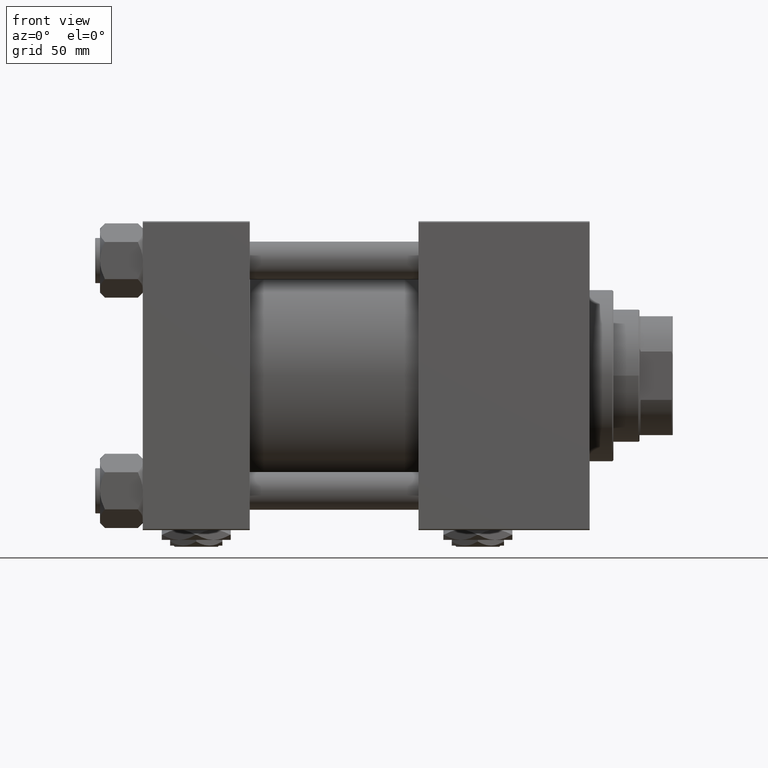
[diagram: clean part render]
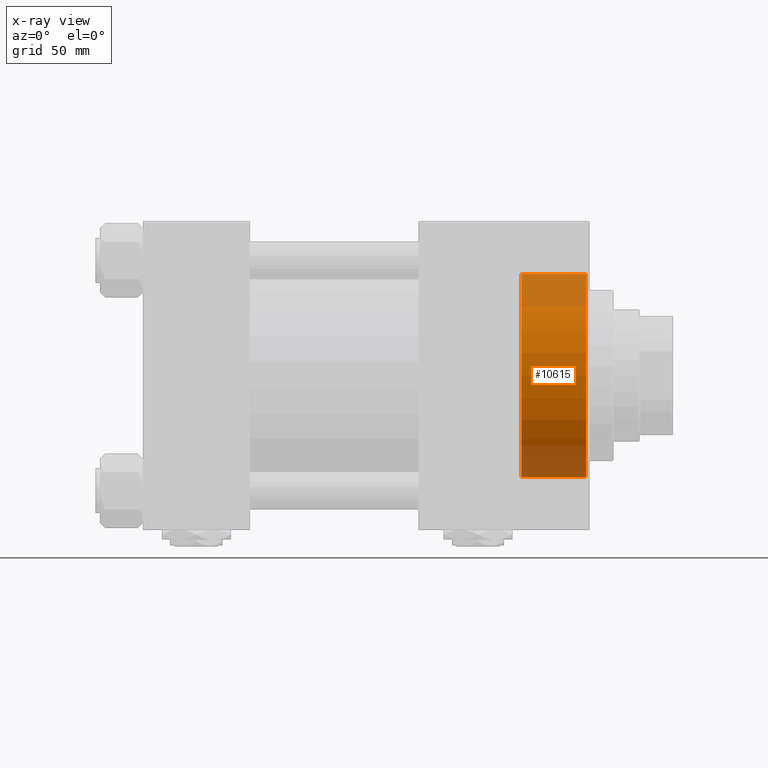
[diagram: x-ray — body ghosted, one internal face saturated and labeled with its STEP entity id]
A machine part, front view, then the same camera in x-ray: the body is ghosted and one INTERNAL B-rep face — a face not visible from any outside direction — is saturated and labeled: STEP entity #10615.
In plain terms, the highlighted cylindrical surface (partial cylindrical patch) has radius 42.75 mm, axis along (1, 0, 0).
Its self-contained STEP definition (entity closure, byte-faithful):
#510 = ORIENTED_EDGE ( 'NONE', *, *, #5128, .T. ) ;
#2884 = EDGE_CURVE ( 'NONE', #8713, #18370, #30877, .T. ) ;
#3053 = DIRECTION ( 'NONE',  ( 0.000000000000000000, 0.000000000000000000, -1.000000000000000000 ) ) ;
#4258 = AXIS2_PLACEMENT_3D ( 'NONE', #26041, #13258, #17521 ) ;
#5128 = EDGE_CURVE ( 'NONE', #38046, #17346, #32701, .T. ) ;
#7874 = CARTESIAN_POINT ( 'NONE',  ( 159.3000000000000114, 5.235365066354935472E-15, 42.75000000000000000 ) ) ;
#8665 = CARTESIAN_POINT ( 'NONE',  ( 186.5000000000000284, 0.000000000000000000, 0.000000000000000000 ) ) ;
#8713 = VERTEX_POINT ( 'NONE', #25862 ) ;
#9119 = EDGE_CURVE ( 'NONE', #38046, #8713, #21281, .T. ) ;
#9755 = FACE_OUTER_BOUND ( 'NONE', #36893, .T. ) ;
#9915 = CARTESIAN_POINT ( 'NONE',  ( 159.3000000000000114, 5.235365066354935472E-15, 42.75000000000000000 ) ) ;
#10034 = ORIENTED_EDGE ( 'NONE', *, *, #2884, .F. ) ;
#10615 = ADVANCED_FACE ( 'NONE', ( #9755 ), #21785, .F. ) ;
#13258 = DIRECTION ( 'NONE',  ( 1.000000000000000000, -0.000000000000000000, -0.000000000000000000 ) ) ;
#13469 = DIRECTION ( 'NONE',  ( 1.000000000000000000, 0.000000000000000000, 0.000000000000000000 ) ) ;
#13730 = EDGE_CURVE ( 'NONE', #17346, #18370, #48708, .T. ) ;
#14662 = VECTOR ( 'NONE', #42895, 1000.000000000000000 ) ;
#15440 = CARTESIAN_POINT ( 'NONE',  ( 186.5000000000000284, 0.000000000000000000, -42.75000000000000000 ) ) ;
#17346 = VERTEX_POINT ( 'NONE', #29358 ) ;
#17521 = DIRECTION ( 'NONE',  ( 0.000000000000000000, 0.000000000000000000, -1.000000000000000000 ) ) ;
#18370 = VERTEX_POINT ( 'NONE', #15440 ) ;
#20685 = DIRECTION ( 'NONE',  ( 0.000000000000000000, 0.000000000000000000, 1.000000000000000000 ) ) ;
#21281 = CIRCLE ( 'NONE', #48555, 42.75000000000000000 ) ;
#21785 = CYLINDRICAL_SURFACE ( 'NONE', #4258, 42.75000000000000000 ) ;
#25862 = CARTESIAN_POINT ( 'NONE',  ( 159.3000000000000114, 0.000000000000000000, -42.75000000000000000 ) ) ;
#26041 = CARTESIAN_POINT ( 'NONE',  ( 159.3000000000000114, 0.000000000000000000, 0.000000000000000000 ) ) ;
#26325 = DIRECTION ( 'NONE',  ( 1.000000000000000000, 0.000000000000000000, 0.000000000000000000 ) ) ;
#27934 = VECTOR ( 'NONE', #30203, 1000.000000000000000 ) ;
#29358 = CARTESIAN_POINT ( 'NONE',  ( 186.5000000000000284, 5.235365066354935472E-15, 42.75000000000000000 ) ) ;
#30203 = DIRECTION ( 'NONE',  ( 1.000000000000000000, -0.000000000000000000, -0.000000000000000000 ) ) ;
#30877 = LINE ( 'NONE', #39399, #14662 ) ;
#32701 = LINE ( 'NONE', #9915, #27934 ) ;
#33393 = AXIS2_PLACEMENT_3D ( 'NONE', #8665, #13469, #20685 ) ;
#33450 = ORIENTED_EDGE ( 'NONE', *, *, #13730, .T. ) ;
#35470 = ORIENTED_EDGE ( 'NONE', *, *, #9119, .F. ) ;
#36893 = EDGE_LOOP ( 'NONE', ( #35470, #510, #33450, #10034 ) ) ;
#38046 = VERTEX_POINT ( 'NONE', #7874 ) ;
#39399 = CARTESIAN_POINT ( 'NONE',  ( 159.3000000000000114, 0.000000000000000000, -42.75000000000000000 ) ) ;
#42895 = DIRECTION ( 'NONE',  ( 1.000000000000000000, -0.000000000000000000, -0.000000000000000000 ) ) ;
#43649 = CARTESIAN_POINT ( 'NONE',  ( 159.3000000000000114, 0.000000000000000000, 0.000000000000000000 ) ) ;
#48555 = AXIS2_PLACEMENT_3D ( 'NONE', #43649, #26325, #3053 ) ;
#48708 = CIRCLE ( 'NONE', #33393, 42.75000000000000000 ) ;